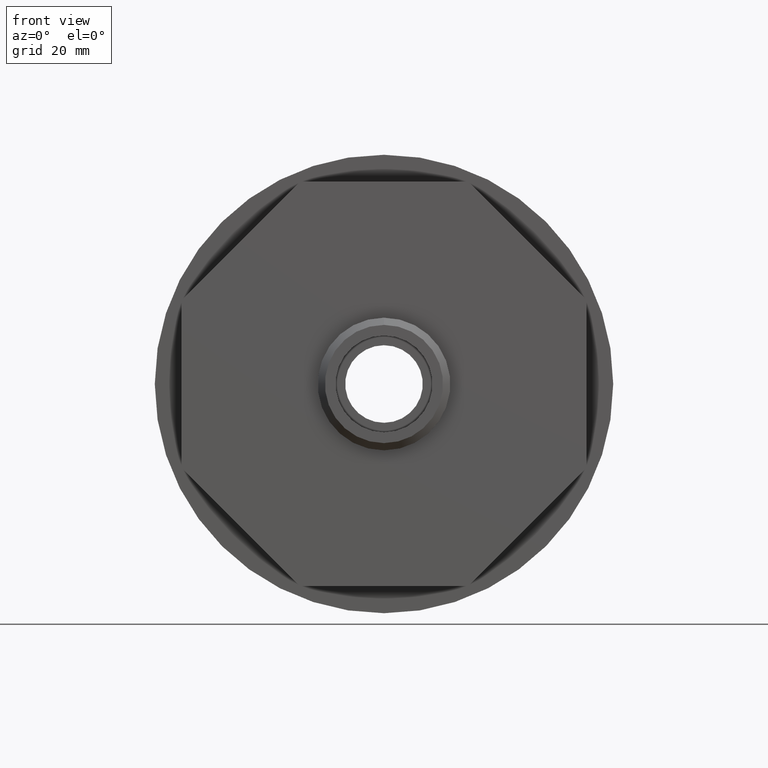
[diagram: clean part render]
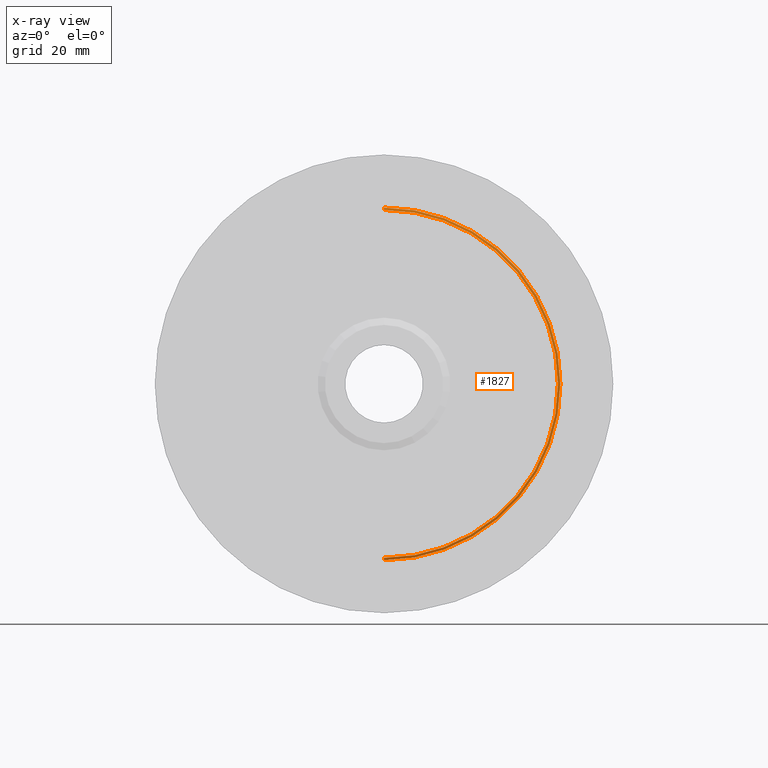
[diagram: x-ray — body ghosted, one internal face saturated and labeled with its STEP entity id]
A machine part, front view, then the same camera in x-ray: the body is ghosted and one INTERNAL B-rep face — a face not visible from any outside direction — is saturated and labeled: STEP entity #1827.
In plain terms, the highlighted conical surface has half-angle 60.495 deg.
Its self-contained STEP definition (entity closure, byte-faithful):
#1827 = ADVANCED_FACE ( 'NONE', ( #4025 ), #4024, .T. ) ;
#1833 = ORIENTED_EDGE ( 'NONE', *, *, #1834, .T. ) ;
#1834 = EDGE_CURVE ( 'NONE', #1835, #1836, #4014, .T. ) ;
#1835 = VERTEX_POINT ( 'NONE', #4004 ) ;
#1836 = VERTEX_POINT ( 'NONE', #4003 ) ;
#1837 = ORIENTED_EDGE ( 'NONE', *, *, #1979, .T. ) ;
#1979 = EDGE_CURVE ( 'NONE', #1836, #1980, #4084, .T. ) ;
#1980 = VERTEX_POINT ( 'NONE', #4080 ) ;
#1981 = ORIENTED_EDGE ( 'NONE', *, *, #1982, .F. ) ;
#1982 = EDGE_CURVE ( 'NONE', #1983, #1980, #4079, .T. ) ;
#1983 = VERTEX_POINT ( 'NONE', #4074 ) ;
#1984 = ORIENTED_EDGE ( 'NONE', *, *, #1985, .F. ) ;
#1985 = EDGE_CURVE ( 'NONE', #1835, #1983, #4073, .T. ) ;
#2001 = EDGE_LOOP ( 'NONE', ( #1833, #1837, #1981, #1984 ) ) ;
#4003 = CARTESIAN_POINT ( 'NONE',  ( 0.0000000000000000000, 0.7021995427989422600, -1.232681216193955300 ) ) ;
#4004 = CARTESIAN_POINT ( 'NONE',  ( 1.520203802357592700E-016, 0.7021995427989422600, 1.232681216193955300 ) ) ;
#4005 = DIRECTION ( 'NONE',  ( 0.0000000000000000000, 0.0000000000000000000, 1.000000000000000000 ) ) ;
#4006 = DIRECTION ( 'NONE',  ( -0.0000000000000000000, 1.000000000000000000, -0.0000000000000000000 ) ) ;
#4007 = CARTESIAN_POINT ( 'NONE',  ( 0.0000000000000000000, 0.7021995427989422600, 0.0000000000000000000 ) ) ;
#4008 = AXIS2_PLACEMENT_3D ( 'NONE', #4007, #4006, #4005 ) ;
#4014 = CIRCLE ( 'NONE', #4008, 1.232681216193955300 ) ;
#4020 = DIRECTION ( 'NONE',  ( 0.0000000000000000000, 0.0000000000000000000, 1.000000000000000000 ) ) ;
#4021 = DIRECTION ( 'NONE',  ( -0.0000000000000000000, 1.000000000000000000, -0.0000000000000000000 ) ) ;
#4022 = CARTESIAN_POINT ( 'NONE',  ( 0.0000000000000000000, 0.7021995427989422600, 0.0000000000000000000 ) ) ;
#4023 = AXIS2_PLACEMENT_3D ( 'NONE', #4022, #4021, #4020 ) ;
#4024 = CONICAL_SURFACE ( 'NONE', #4023, 1.232681216193955300, 1.055838437955581900 ) ;
#4025 = FACE_OUTER_BOUND ( 'NONE', #2001, .T. ) ;
#4070 = DIRECTION ( 'NONE',  ( 0.0000000000000000000, 0.4924981995627292800, 0.8703134627405634300 ) ) ;
#4071 = VECTOR ( 'NONE', #4070, 39.37007874015748100 ) ;
#4072 = CARTESIAN_POINT ( 'NONE',  ( 0.0000000000000000000, 0.7021995427989422600, 1.232681216193955300 ) ) ;
#4073 = LINE ( 'NONE', #4072, #4071 ) ;
#4074 = CARTESIAN_POINT ( 'NONE',  ( 0.0000000000000000000, 0.7119999999999999700, 1.250000000000000000 ) ) ;
#4075 = DIRECTION ( 'NONE',  ( 0.0000000000000000000, 0.0000000000000000000, 1.000000000000000000 ) ) ;
#4076 = DIRECTION ( 'NONE',  ( -0.0000000000000000000, 1.000000000000000000, -0.0000000000000000000 ) ) ;
#4077 = CARTESIAN_POINT ( 'NONE',  ( 0.0000000000000000000, 0.7119999999999999700, 0.0000000000000000000 ) ) ;
#4078 = AXIS2_PLACEMENT_3D ( 'NONE', #4077, #4076, #4075 ) ;
#4079 = CIRCLE ( 'NONE', #4078, 1.250000000000000000 ) ;
#4080 = CARTESIAN_POINT ( 'NONE',  ( 1.530808498934191600E-016, 0.7119999999999999700, -1.250000000000000000 ) ) ;
#4081 = DIRECTION ( 'NONE',  ( 1.065826596400080300E-016, 0.4924981995627292800, -0.8703134627405634300 ) ) ;
#4082 = VECTOR ( 'NONE', #4081, 39.37007874015748100 ) ;
#4083 = CARTESIAN_POINT ( 'NONE',  ( 1.509599105780993900E-016, 0.7021995427989422600, -1.232681216193955300 ) ) ;
#4084 = LINE ( 'NONE', #4083, #4082 ) ;